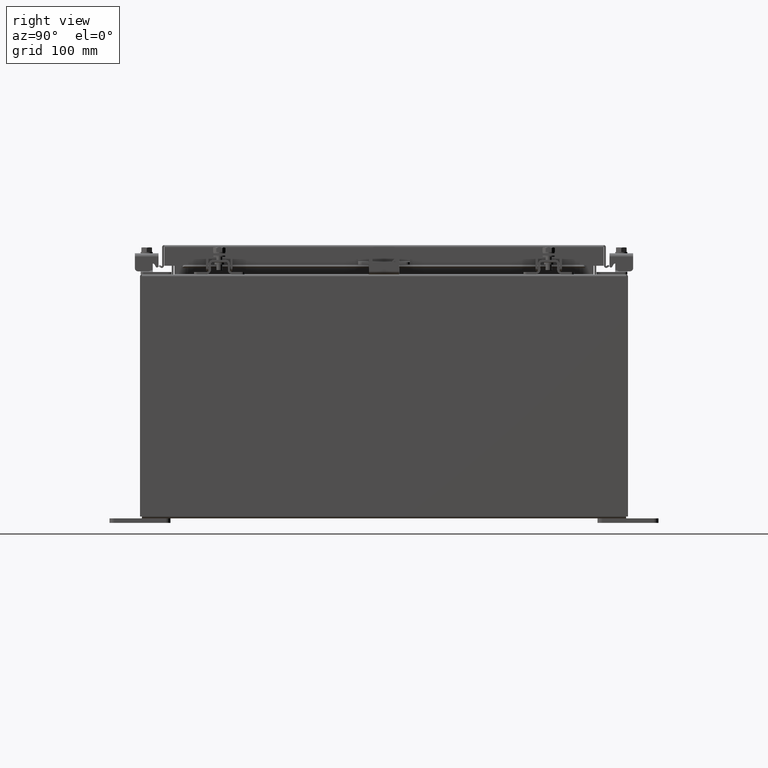
[diagram: clean part render]
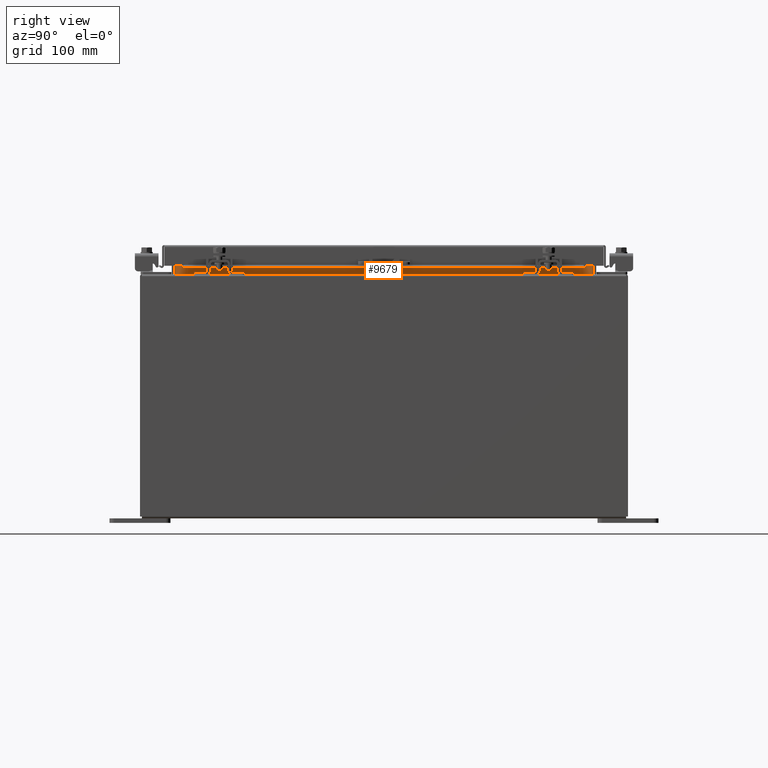
[diagram: same view with one face highlighted and labeled with its STEP entity id]
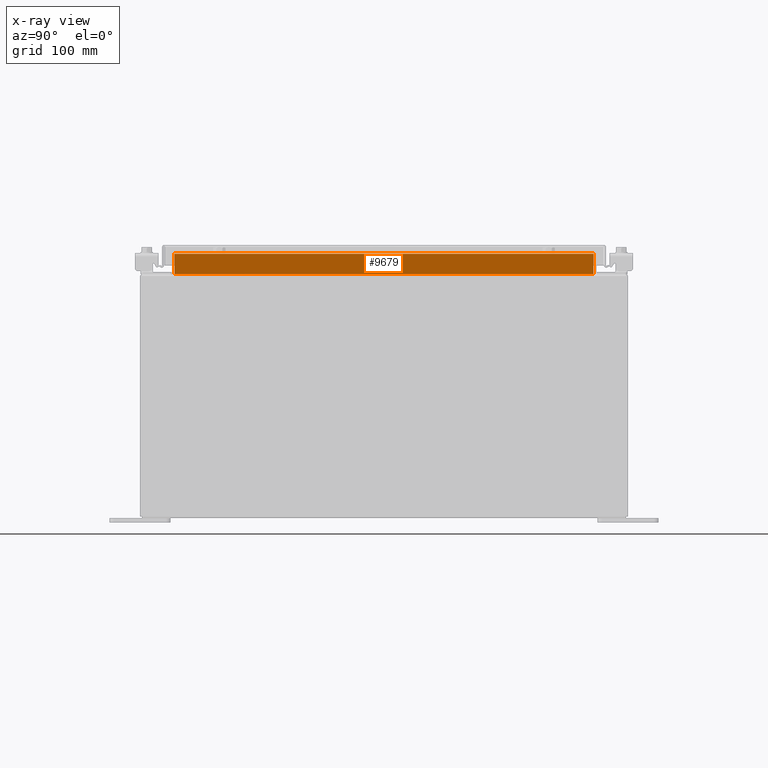
[diagram: x-ray of the same camera — body ghosted, the highlighted face saturated]
A machine part, right view. The second image highlights one B-rep face of the part: STEP entity #9679.
The next image is the same camera in x-ray: the body ghosted, the highlighted face saturated — about 0% of this face is hidden behind the body in this view.
In plain terms, the highlighted planar face has unit normal (1, 0, -0).
Its self-contained STEP definition (entity closure, byte-faithful):
#294 = CARTESIAN_POINT ( 'NONE',  ( 6.699700000000040800, -8.593750000000003600, 10.76290000000000700 ) ) ;
#958 = LINE ( 'NONE', #2093, #18423 ) ;
#2093 = CARTESIAN_POINT ( 'NONE',  ( 6.699700000000042600, -8.593750000000003600, 10.85060000000001100 ) ) ;
#2358 = VECTOR ( 'NONE', #19670, 39.37007874015748100 ) ;
#4327 = CARTESIAN_POINT ( 'NONE',  ( 6.699700000000035500, 8.593749999999994700, 9.938300000000007000 ) ) ;
#4421 = EDGE_CURVE ( 'NONE', #10347, #20235, #958, .T. ) ;
#4793 = DIRECTION ( 'NONE',  ( 0.0000000000000000000, 1.000000000000000000, 0.0000000000000000000 ) ) ;
#5464 = FACE_OUTER_BOUND ( 'NONE', #13936, .T. ) ;
#6819 = CARTESIAN_POINT ( 'NONE',  ( 6.699700000000040800, 8.593749999999994700, 10.76290000000000700 ) ) ;
#7454 = LINE ( 'NONE', #294, #25596 ) ;
#7889 = PLANE ( 'NONE',  #9279 ) ;
#7945 = EDGE_CURVE ( 'NONE', #9213, #10347, #8398, .T. ) ;
#8398 = LINE ( 'NONE', #4327, #2358 ) ;
#9048 = DIRECTION ( 'NONE',  ( -3.542869979895289700E-015, -0.0000000000000000000, -1.000000000000000000 ) ) ;
#9213 = VERTEX_POINT ( 'NONE', #27277 ) ;
#9279 = AXIS2_PLACEMENT_3D ( 'NONE', #11421, #16522, #26572 ) ;
#9295 = CARTESIAN_POINT ( 'NONE',  ( 6.699700000000036400, 8.593749999999994700, 9.925300000000007100 ) ) ;
#9679 = ADVANCED_FACE ( 'NONE', ( #5464 ), #7889, .T. ) ;
#10347 = VERTEX_POINT ( 'NONE', #20736 ) ;
#11421 = CARTESIAN_POINT ( 'NONE',  ( 6.699700000000002700, 8.519010677830938800E-016, -2.373616600430448300E-014 ) ) ;
#11661 = ORIENTED_EDGE ( 'NONE', *, *, #4421, .F. ) ;
#12854 = EDGE_CURVE ( 'NONE', #16968, #9213, #25551, .T. ) ;
#12863 = ORIENTED_EDGE ( 'NONE', *, *, #14990, .F. ) ;
#13584 = ORIENTED_EDGE ( 'NONE', *, *, #7945, .F. ) ;
#13936 = EDGE_LOOP ( 'NONE', ( #25103, #12863, #11661, #13584 ) ) ;
#14990 = EDGE_CURVE ( 'NONE', #20235, #16968, #7454, .T. ) ;
#16522 = DIRECTION ( 'NONE',  ( 1.000000000000000000, 1.271551066141907300E-016, -3.542869979895289700E-015 ) ) ;
#16968 = VERTEX_POINT ( 'NONE', #6819 ) ;
#18423 = VECTOR ( 'NONE', #26266, 39.37007874015748100 ) ;
#19512 = VECTOR ( 'NONE', #9048, 39.37007874015748100 ) ;
#19670 = DIRECTION ( 'NONE',  ( 5.086204264567646800E-016, -1.000000000000000000, 3.814653198425735100E-016 ) ) ;
#20235 = VERTEX_POINT ( 'NONE', #22590 ) ;
#20736 = CARTESIAN_POINT ( 'NONE',  ( 6.699700000000036400, -8.593750000000005300, 9.938300000000008800 ) ) ;
#22590 = CARTESIAN_POINT ( 'NONE',  ( 6.699700000000042600, -8.593750000000003600, 10.76290000000000700 ) ) ;
#25103 = ORIENTED_EDGE ( 'NONE', *, *, #12854, .F. ) ;
#25551 = LINE ( 'NONE', #9295, #19512 ) ;
#25596 = VECTOR ( 'NONE', #4793, 39.37007874015748100 ) ;
#26266 = DIRECTION ( 'NONE',  ( 3.542869979895298400E-015, -0.0000000000000000000, 1.000000000000000000 ) ) ;
#26572 = DIRECTION ( 'NONE',  ( -3.542869979895289700E-015, 0.0000000000000000000, -1.000000000000000000 ) ) ;
#27277 = CARTESIAN_POINT ( 'NONE',  ( 6.699700000000036400, 8.593749999999994700, 9.938300000000008800 ) ) ;